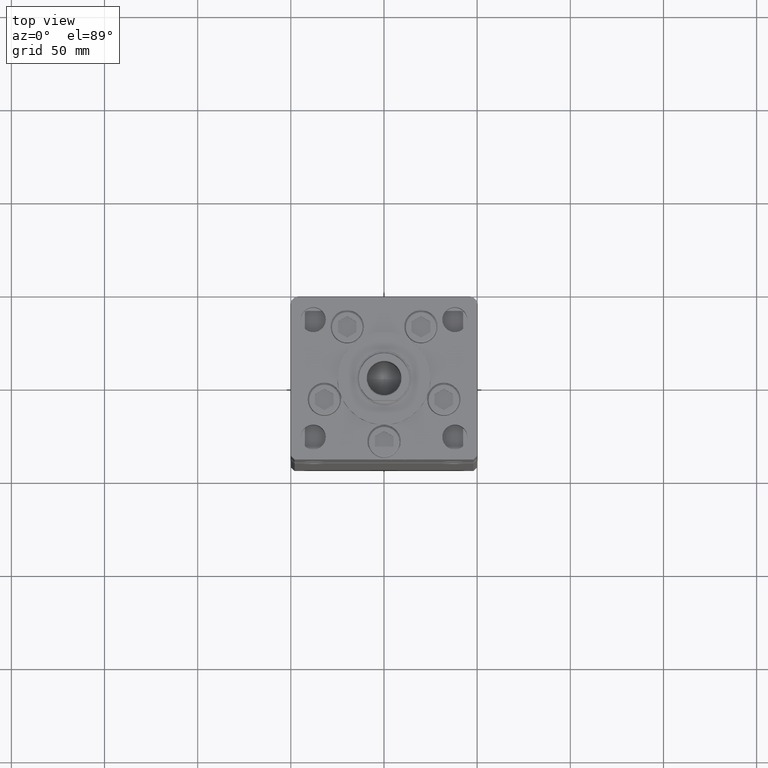
[diagram: clean part render]
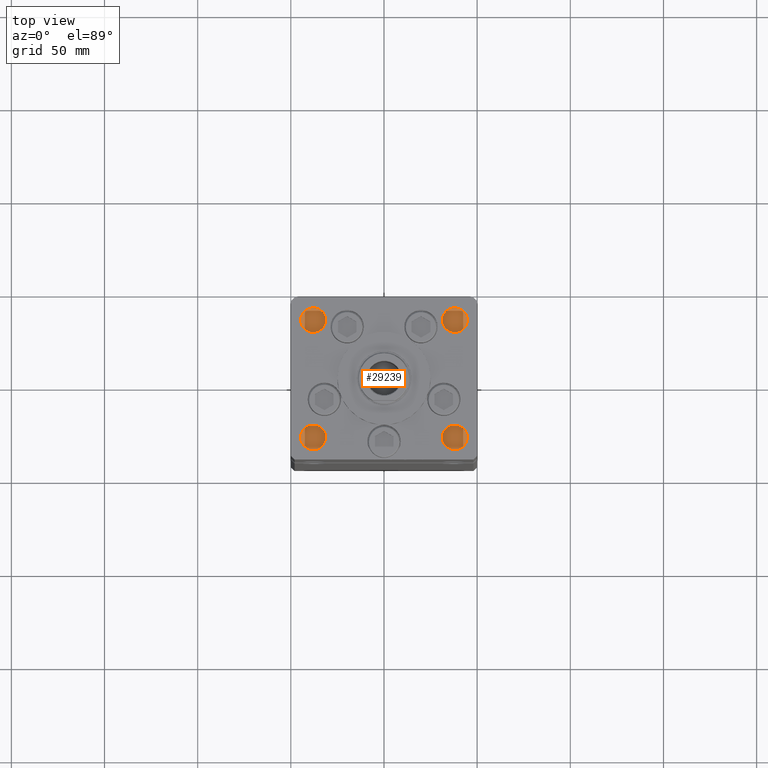
[diagram: same view with one face highlighted and labeled with its STEP entity id]
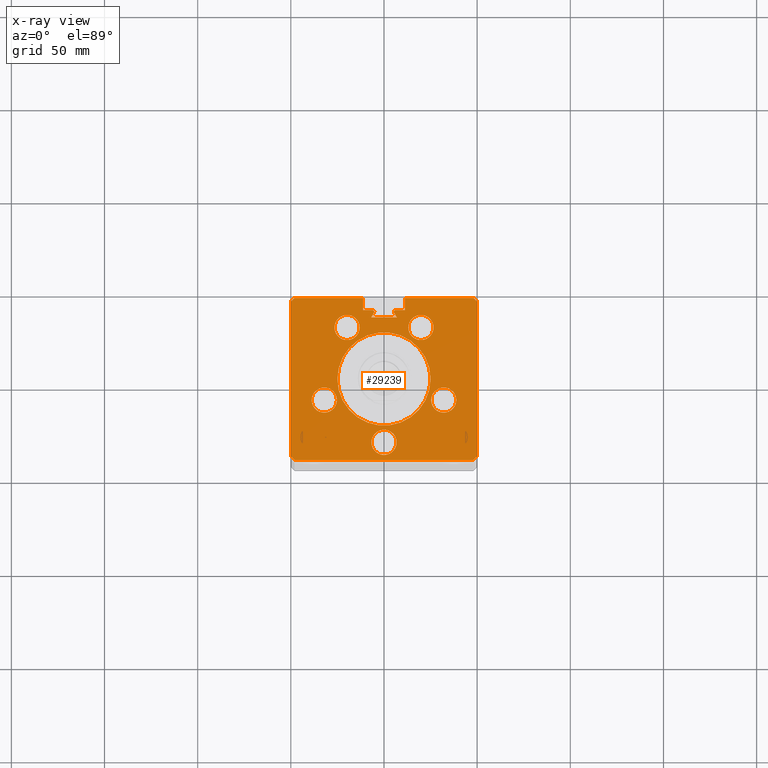
[diagram: x-ray of the same camera — body ghosted, the highlighted face saturated]
A machine part, top view. The second image highlights one B-rep face of the part: STEP entity #29239.
The next image is the same camera in x-ray: the body ghosted, the highlighted face saturated — about 0% of this face is hidden behind the body in this view.
In plain terms, the highlighted planar face has unit normal (0, 0, -1).
Its self-contained STEP definition (entity closure, byte-faithful):
#282 = DIRECTION ( 'NONE',  ( 1.000000000000000000, 0.000000000000000000, 0.000000000000000000 ) ) ;
#935 = VECTOR ( 'NONE', #36251, 1000.000000000000114 ) ;
#1066 = CARTESIAN_POINT ( 'NONE',  ( 6.183333333333996151, 36.06666666666599497, 318.5000000000000000 ) ) ;
#1135 = LINE ( 'NONE', #29928, #9316 ) ;
#1154 = CARTESIAN_POINT ( 'NONE',  ( 32.05550741379015278, -11.33333333333334103, 318.5000000000000000 ) ) ;
#1468 = EDGE_CURVE ( 'NONE', #3610, #44423, #16455, .T. ) ;
#1793 = ORIENTED_EDGE ( 'NONE', *, *, #2749, .T. ) ;
#1871 = CARTESIAN_POINT ( 'NONE',  ( -32.05550741379015278, -11.33333333333334458, 318.5000000000000000 ) ) ;
#1991 = DIRECTION ( 'NONE',  ( -0.000000000000000000, 0.000000000000000000, 1.000000000000000000 ) ) ;
#2495 = ORIENTED_EDGE ( 'NONE', *, *, #22591, .F. ) ;
#2552 = AXIS2_PLACEMENT_3D ( 'NONE', #1066, #17485, #282 ) ;
#2589 = FACE_BOUND ( 'NONE', #48832, .T. ) ;
#2749 = EDGE_CURVE ( 'NONE', #31537, #41893, #10685, .T. ) ;
#3506 = AXIS2_PLACEMENT_3D ( 'NONE', #6352, #51220, #35665 ) ;
#3610 = VERTEX_POINT ( 'NONE', #37124 ) ;
#3996 = EDGE_CURVE ( 'NONE', #43718, #29099, #11866, .T. ) ;
#4209 = CIRCLE ( 'NONE', #11085, 6.749999999999999112 ) ;
#4403 = ORIENTED_EDGE ( 'NONE', *, *, #3996, .F. ) ;
#4532 = DIRECTION ( 'NONE',  ( 1.000000000000000000, 0.000000000000000000, 0.000000000000000000 ) ) ;
#4545 = VERTEX_POINT ( 'NONE', #25293 ) ;
#4855 = VERTEX_POINT ( 'NONE', #15851 ) ;
#4986 = DIRECTION ( 'NONE',  ( -1.000000000000000000, 0.000000000000000000, 0.000000000000000000 ) ) ;
#5159 = EDGE_CURVE ( 'NONE', #42906, #51132, #1135, .T. ) ;
#5273 = AXIS2_PLACEMENT_3D ( 'NONE', #23341, #39734, #27651 ) ;
#5572 = LINE ( 'NONE', #22526, #47836 ) ;
#5626 = DIRECTION ( 'NONE',  ( 1.000000000000000000, 0.000000000000000000, 0.000000000000000000 ) ) ;
#5772 = CARTESIAN_POINT ( 'NONE',  ( -26.57068048781373903, 27.62499999999999645, 318.5000000000000000 ) ) ;
#5854 = CARTESIAN_POINT ( 'NONE',  ( 47.99999999999998579, -43.50000000000000000, 318.5000000000000000 ) ) ;
#5989 = VERTEX_POINT ( 'NONE', #22092 ) ;
#5990 = DIRECTION ( 'NONE',  ( 1.000000000000000000, 0.000000000000000000, 0.000000000000000000 ) ) ;
#6018 = CARTESIAN_POINT ( 'NONE',  ( -6.749999999999997335, -34.00000000000000000, 318.5000000000000000 ) ) ;
#6091 = FACE_BOUND ( 'NONE', #19074, .T. ) ;
#6098 = CARTESIAN_POINT ( 'NONE',  ( 48.00000000000000711, 43.50000000000000000, 318.5000000000000000 ) ) ;
#6214 = CARTESIAN_POINT ( 'NONE',  ( -11.24999999999999645, 43.50000000000000000, 318.5000000000000000 ) ) ;
#6352 = CARTESIAN_POINT ( 'NONE',  ( 0.000000000000000000, 0.000000000000000000, 318.5000000000000000 ) ) ;
#6363 = CARTESIAN_POINT ( 'NONE',  ( -6.183333333333996151, 36.06666666666599497, 318.5000000000000000 ) ) ;
#6428 = EDGE_LOOP ( 'NONE', ( #36728, #27021, #12038, #23844, #9318, #1793, #35558, #2495, #33690, #38804, #10837, #33734, #44456, #22091, #33428, #51114, #13528, #43294, #32594 ) ) ;
#6566 = CARTESIAN_POINT ( 'NONE',  ( 49.99999999999998579, -41.49999999999999289, 318.5000000000000000 ) ) ;
#7155 = CARTESIAN_POINT ( 'NONE',  ( 48.00000000000000711, 43.50000000000000000, 318.5000000000000000 ) ) ;
#7868 = DIRECTION ( 'NONE',  ( 0.000000000000000000, 0.000000000000000000, 1.000000000000000000 ) ) ;
#8292 = AXIS2_PLACEMENT_3D ( 'NONE', #52000, #47439, #19508 ) ;
#8434 = CARTESIAN_POINT ( 'NONE',  ( -13.07068048781374259, 27.62499999999999645, 318.5000000000000000 ) ) ;
#8587 = CARTESIAN_POINT ( 'NONE',  ( -6.183333333333996151, 36.06666666666599497, 318.5000000000000000 ) ) ;
#8700 = VERTEX_POINT ( 'NONE', #5772 ) ;
#9038 = VECTOR ( 'NONE', #34236, 1000.000000000000000 ) ;
#9316 = VECTOR ( 'NONE', #43060, 1000.000000000000000 ) ;
#9318 = ORIENTED_EDGE ( 'NONE', *, *, #9597, .T. ) ;
#9398 = EDGE_CURVE ( 'NONE', #49063, #32604, #14340, .T. ) ;
#9451 = CIRCLE ( 'NONE', #39524, 0.9333333333339999260 ) ;
#9597 = EDGE_CURVE ( 'NONE', #28323, #31537, #49214, .T. ) ;
#9681 = VERTEX_POINT ( 'NONE', #13212 ) ;
#9689 = CARTESIAN_POINT ( 'NONE',  ( 25.30550741379015278, -11.33333333333334103, 318.5000000000000000 ) ) ;
#9744 = VERTEX_POINT ( 'NONE', #21551 ) ;
#9868 = DIRECTION ( 'NONE',  ( 1.000000000000000000, 0.000000000000000000, 0.000000000000000000 ) ) ;
#9967 = CIRCLE ( 'NONE', #26302, 6.749999999999999112 ) ;
#10651 = DIRECTION ( 'NONE',  ( 0.000000000000000000, 1.000000000000000000, 0.000000000000000000 ) ) ;
#10685 = LINE ( 'NONE', #19565, #23000 ) ;
#10837 = ORIENTED_EDGE ( 'NONE', *, *, #5159, .F. ) ;
#10935 = VECTOR ( 'NONE', #40636, 1000.000000000000000 ) ;
#11016 = CARTESIAN_POINT ( 'NONE',  ( 38.80550741379015278, -11.33333333333334103, 318.5000000000000000 ) ) ;
#11085 = AXIS2_PLACEMENT_3D ( 'NONE', #41451, #7868, #24283 ) ;
#11462 = DIRECTION ( 'NONE',  ( 0.000000000000000000, 0.000000000000000000, 1.000000000000000000 ) ) ;
#11553 = EDGE_CURVE ( 'NONE', #30422, #33311, #12284, .T. ) ;
#11812 = CIRCLE ( 'NONE', #36698, 6.749999999999999112 ) ;
#11866 = CIRCLE ( 'NONE', #48756, 25.00000000000000000 ) ;
#12038 = ORIENTED_EDGE ( 'NONE', *, *, #51826, .F. ) ;
#12284 = LINE ( 'NONE', #32965, #21980 ) ;
#12607 = AXIS2_PLACEMENT_3D ( 'NONE', #23157, #22874, #51065 ) ;
#12628 = DIRECTION ( 'NONE',  ( 0.000000000000000000, 0.000000000000000000, 1.000000000000000000 ) ) ;
#12693 = CARTESIAN_POINT ( 'NONE',  ( 25.00000000000000000, 3.061616997868383043E-15, 318.5000000000000000 ) ) ;
#13212 = CARTESIAN_POINT ( 'NONE',  ( -38.80550741379015278, -11.33333333333334458, 318.5000000000000000 ) ) ;
#13528 = ORIENTED_EDGE ( 'NONE', *, *, #46352, .T. ) ;
#13561 = LINE ( 'NONE', #33978, #34966 ) ;
#13825 = DIRECTION ( 'NONE',  ( 0.4999999999999987788, 0.8660254037844392627, 0.000000000000000000 ) ) ;
#14340 = LINE ( 'NONE', #18112, #9038 ) ;
#14441 = PLANE ( 'NONE',  #3506 ) ;
#14727 = DIRECTION ( 'NONE',  ( 1.000000000000000000, 0.000000000000000000, 0.000000000000000000 ) ) ;
#15147 = CIRCLE ( 'NONE', #52860, 6.749999999999999112 ) ;
#15239 = EDGE_LOOP ( 'NONE', ( #48422, #21073 ) ) ;
#15289 = CARTESIAN_POINT ( 'NONE',  ( -49.99999999999998579, -41.49999999999999289, 318.5000000000000000 ) ) ;
#15472 = DIRECTION ( 'NONE',  ( -0.7071067811865474617, -0.7071067811865474617, 0.000000000000000000 ) ) ;
#15473 = VERTEX_POINT ( 'NONE', #6214 ) ;
#15605 = DIRECTION ( 'NONE',  ( 1.000000000000000000, 0.000000000000000000, 0.000000000000000000 ) ) ;
#15715 = CARTESIAN_POINT ( 'NONE',  ( -25.30550741379015278, -11.33333333333334458, 318.5000000000000000 ) ) ;
#15851 = CARTESIAN_POINT ( 'NONE',  ( -5.249999999999995559, 36.06666666666599497, 318.5000000000000000 ) ) ;
#15856 = DIRECTION ( 'NONE',  ( 1.000000000000000000, 0.000000000000000000, 0.000000000000000000 ) ) ;
#15869 = DIRECTION ( 'NONE',  ( 0.000000000000000000, 0.000000000000000000, 1.000000000000000000 ) ) ;
#16358 = EDGE_LOOP ( 'NONE', ( #21863, #48384 ) ) ;
#16455 = LINE ( 'NONE', #29088, #10935 ) ;
#16926 = LINE ( 'NONE', #37353, #52951 ) ;
#17281 = VERTEX_POINT ( 'NONE', #15715 ) ;
#17485 = DIRECTION ( 'NONE',  ( 0.000000000000000000, 0.000000000000000000, -1.000000000000000000 ) ) ;
#17793 = EDGE_CURVE ( 'NONE', #32604, #15473, #31904, .T. ) ;
#18112 = CARTESIAN_POINT ( 'NONE',  ( 0.000000000000000000, 37.00000000000000000, 318.5000000000000000 ) ) ;
#19074 = EDGE_LOOP ( 'NONE', ( #33151, #4403 ) ) ;
#19272 = FACE_BOUND ( 'NONE', #26350, .T. ) ;
#19508 = DIRECTION ( 'NONE',  ( 1.000000000000000000, 0.000000000000000000, 0.000000000000000000 ) ) ;
#19513 = EDGE_CURVE ( 'NONE', #42906, #30422, #16926, .T. ) ;
#19514 = EDGE_CURVE ( 'NONE', #41558, #21828, #11812, .T. ) ;
#19565 = CARTESIAN_POINT ( 'NONE',  ( -49.99999999999998579, -41.49999999999999289, 318.5000000000000000 ) ) ;
#20041 = CARTESIAN_POINT ( 'NONE',  ( -6.183333333333996151, 37.00000000000000000, 318.5000000000000000 ) ) ;
#20145 = CARTESIAN_POINT ( 'NONE',  ( 26.57068048781373903, 27.62500000000000000, 318.5000000000000000 ) ) ;
#20679 = CARTESIAN_POINT ( 'NONE',  ( -47.99999999999998579, -43.50000000000000000, 318.5000000000000000 ) ) ;
#21073 = ORIENTED_EDGE ( 'NONE', *, *, #30616, .F. ) ;
#21332 = VECTOR ( 'NONE', #15472, 1000.000000000000114 ) ;
#21551 = CARTESIAN_POINT ( 'NONE',  ( 50.00000000000001421, 41.49999999999999289, 318.5000000000000000 ) ) ;
#21828 = VERTEX_POINT ( 'NONE', #6018 ) ;
#21863 = ORIENTED_EDGE ( 'NONE', *, *, #19514, .F. ) ;
#21980 = VECTOR ( 'NONE', #4986, 1000.000000000000000 ) ;
#22091 = ORIENTED_EDGE ( 'NONE', *, *, #26129, .F. ) ;
#22092 = CARTESIAN_POINT ( 'NONE',  ( 13.07068048781374081, 27.62500000000000000, 318.5000000000000000 ) ) ;
#22422 = EDGE_CURVE ( 'NONE', #8700, #30305, #46202, .T. ) ;
#22506 = FACE_BOUND ( 'NONE', #15239, .T. ) ;
#22526 = CARTESIAN_POINT ( 'NONE',  ( -11.24999999999999645, 43.50000000000000000, 318.5000000000000000 ) ) ;
#22591 = EDGE_CURVE ( 'NONE', #4545, #46825, #22720, .T. ) ;
#22683 = CARTESIAN_POINT ( 'NONE',  ( 6.183333333333996151, 37.00000000000000000, 318.5000000000000000 ) ) ;
#22720 = LINE ( 'NONE', #6566, #21332 ) ;
#22874 = DIRECTION ( 'NONE',  ( 0.000000000000000000, 0.000000000000000000, 1.000000000000000000 ) ) ;
#23000 = VECTOR ( 'NONE', #27106, 1000.000000000000114 ) ;
#23088 = LINE ( 'NONE', #40011, #935 ) ;
#23137 = VERTEX_POINT ( 'NONE', #20145 ) ;
#23157 = CARTESIAN_POINT ( 'NONE',  ( 19.82068048781374259, 27.62500000000000000, 318.5000000000000000 ) ) ;
#23313 = LINE ( 'NONE', #7155, #49723 ) ;
#23341 = CARTESIAN_POINT ( 'NONE',  ( 19.82068048781374259, 27.62500000000000000, 318.5000000000000000 ) ) ;
#23844 = ORIENTED_EDGE ( 'NONE', *, *, #33344, .T. ) ;
#23979 = VERTEX_POINT ( 'NONE', #9689 ) ;
#24032 = DIRECTION ( 'NONE',  ( -0.7071067811865487940, -0.7071067811865463515, 0.000000000000000000 ) ) ;
#24148 = VECTOR ( 'NONE', #24032, 1000.000000000000000 ) ;
#24283 = DIRECTION ( 'NONE',  ( 1.000000000000000000, 0.000000000000000000, 0.000000000000000000 ) ) ;
#24541 = ORIENTED_EDGE ( 'NONE', *, *, #34845, .F. ) ;
#24882 = EDGE_CURVE ( 'NONE', #17281, #9681, #4209, .T. ) ;
#25000 = DIRECTION ( 'NONE',  ( 0.000000000000000000, 0.000000000000000000, -1.000000000000000000 ) ) ;
#25293 = CARTESIAN_POINT ( 'NONE',  ( 49.99999999999998579, -41.49999999999999289, 318.5000000000000000 ) ) ;
#25294 = EDGE_CURVE ( 'NONE', #51132, #9744, #23313, .T. ) ;
#25391 = ORIENTED_EDGE ( 'NONE', *, *, #47690, .F. ) ;
#25897 = CIRCLE ( 'NONE', #44759, 6.749999999999999112 ) ;
#26129 = EDGE_CURVE ( 'NONE', #36893, #33311, #43769, .T. ) ;
#26302 = AXIS2_PLACEMENT_3D ( 'NONE', #1154, #29946, #5990 ) ;
#26350 = EDGE_LOOP ( 'NONE', ( #24541, #33910 ) ) ;
#26480 = AXIS2_PLACEMENT_3D ( 'NONE', #50913, #50381, #42592 ) ;
#26602 = CARTESIAN_POINT ( 'NONE',  ( 32.05550741379015278, -11.33333333333334103, 318.5000000000000000 ) ) ;
#26887 = DIRECTION ( 'NONE',  ( 0.000000000000000000, 0.000000000000000000, 1.000000000000000000 ) ) ;
#27021 = ORIENTED_EDGE ( 'NONE', *, *, #17793, .T. ) ;
#27106 = DIRECTION ( 'NONE',  ( 0.7071067811865474617, -0.7071067811865474617, 0.000000000000000000 ) ) ;
#27166 = EDGE_CURVE ( 'NONE', #21828, #41558, #41200, .T. ) ;
#27422 = EDGE_CURVE ( 'NONE', #4855, #31862, #9451, .T. ) ;
#27651 = DIRECTION ( 'NONE',  ( 1.000000000000000000, 0.000000000000000000, 0.000000000000000000 ) ) ;
#27810 = CARTESIAN_POINT ( 'NONE',  ( -48.00000000000000711, 43.50000000000000000, 318.5000000000000000 ) ) ;
#27886 = FACE_OUTER_BOUND ( 'NONE', #6428, .T. ) ;
#28323 = VERTEX_POINT ( 'NONE', #37055 ) ;
#28745 = LINE ( 'NONE', #20679, #29727 ) ;
#29040 = DIRECTION ( 'NONE',  ( 1.000000000000000000, 0.000000000000000000, 0.000000000000000000 ) ) ;
#29088 = CARTESIAN_POINT ( 'NONE',  ( 0.000000000000000000, 32.99999999999986500, 318.5000000000000000 ) ) ;
#29099 = VERTEX_POINT ( 'NONE', #29524 ) ;
#29239 = ADVANCED_FACE ( 'NONE', ( #52304, #39166, #19272, #22506, #2589, #27886, #6091 ), #14441, .F. ) ;
#29524 = CARTESIAN_POINT ( 'NONE',  ( -25.00000000000000000, 0.000000000000000000, 318.5000000000000000 ) ) ;
#29727 = VECTOR ( 'NONE', #33549, 1000.000000000000000 ) ;
#29928 = CARTESIAN_POINT ( 'NONE',  ( -11.24999999999999645, 43.50000000000000000, 318.5000000000000000 ) ) ;
#29946 = DIRECTION ( 'NONE',  ( 0.000000000000000000, 0.000000000000000000, 1.000000000000000000 ) ) ;
#30254 = CARTESIAN_POINT ( 'NONE',  ( 0.000000000000000000, 0.000000000000000000, 318.5000000000000000 ) ) ;
#30305 = VERTEX_POINT ( 'NONE', #8434 ) ;
#30342 = CARTESIAN_POINT ( 'NONE',  ( 11.24999999999999645, 37.00000000000000000, 318.5000000000000000 ) ) ;
#30422 = VERTEX_POINT ( 'NONE', #30342 ) ;
#30428 = CARTESIAN_POINT ( 'NONE',  ( -11.24999999999999645, 37.00000000000000000, 318.5000000000000000 ) ) ;
#30616 = EDGE_CURVE ( 'NONE', #5989, #23137, #52465, .T. ) ;
#30808 = CARTESIAN_POINT ( 'NONE',  ( 50.00000000000001421, 41.49999999999999289, 318.5000000000000000 ) ) ;
#30865 = DIRECTION ( 'NONE',  ( 0.000000000000000000, 0.000000000000000000, -1.000000000000000000 ) ) ;
#31537 = VERTEX_POINT ( 'NONE', #15289 ) ;
#31862 = VERTEX_POINT ( 'NONE', #51996 ) ;
#31904 = LINE ( 'NONE', #39701, #36655 ) ;
#32589 = CARTESIAN_POINT ( 'NONE',  ( -50.00000000000001421, 41.49999999999999289, 318.5000000000000000 ) ) ;
#32594 = ORIENTED_EDGE ( 'NONE', *, *, #36623, .F. ) ;
#32604 = VERTEX_POINT ( 'NONE', #30428 ) ;
#32848 = DIRECTION ( 'NONE',  ( 3.344045254895050973E-16, -1.000000000000000000, 0.000000000000000000 ) ) ;
#32965 = CARTESIAN_POINT ( 'NONE',  ( 0.000000000000000000, 37.00000000000000000, 318.5000000000000000 ) ) ;
#33127 = AXIS2_PLACEMENT_3D ( 'NONE', #1871, #26887, #5626 ) ;
#33151 = ORIENTED_EDGE ( 'NONE', *, *, #48925, .F. ) ;
#33311 = VERTEX_POINT ( 'NONE', #22683 ) ;
#33344 = EDGE_CURVE ( 'NONE', #37859, #28323, #35317, .T. ) ;
#33428 = ORIENTED_EDGE ( 'NONE', *, *, #33812, .T. ) ;
#33549 = DIRECTION ( 'NONE',  ( 1.000000000000000000, 0.000000000000000000, 0.000000000000000000 ) ) ;
#33690 = ORIENTED_EDGE ( 'NONE', *, *, #46900, .F. ) ;
#33734 = ORIENTED_EDGE ( 'NONE', *, *, #19513, .T. ) ;
#33812 = EDGE_CURVE ( 'NONE', #36893, #3610, #23088, .T. ) ;
#33910 = ORIENTED_EDGE ( 'NONE', *, *, #43458, .F. ) ;
#33978 = CARTESIAN_POINT ( 'NONE',  ( -19.44653440471351757, 11.22746187336663404, 318.5000000000000000 ) ) ;
#34236 = DIRECTION ( 'NONE',  ( -1.000000000000000000, 0.000000000000000000, 0.000000000000000000 ) ) ;
#34809 = DIRECTION ( 'NONE',  ( -3.344045254895050973E-16, -1.000000000000000000, 0.000000000000000000 ) ) ;
#34845 = EDGE_CURVE ( 'NONE', #51602, #23979, #25897, .T. ) ;
#34966 = VECTOR ( 'NONE', #13825, 1000.000000000000114 ) ;
#35317 = LINE ( 'NONE', #27810, #24148 ) ;
#35558 = ORIENTED_EDGE ( 'NONE', *, *, #42186, .T. ) ;
#35665 = DIRECTION ( 'NONE',  ( -1.000000000000000000, 0.000000000000000000, -0.000000000000000000 ) ) ;
#36239 = CARTESIAN_POINT ( 'NONE',  ( 5.375042956467946276, 35.59999999999899245, 318.5000000000000000 ) ) ;
#36251 = DIRECTION ( 'NONE',  ( 0.4999999999999987788, -0.8660254037844392627, 0.000000000000000000 ) ) ;
#36623 = EDGE_CURVE ( 'NONE', #49063, #4855, #41348, .T. ) ;
#36655 = VECTOR ( 'NONE', #10651, 1000.000000000000000 ) ;
#36698 = AXIS2_PLACEMENT_3D ( 'NONE', #49410, #12628, #29040 ) ;
#36728 = ORIENTED_EDGE ( 'NONE', *, *, #9398, .T. ) ;
#36893 = VERTEX_POINT ( 'NONE', #36239 ) ;
#37055 = CARTESIAN_POINT ( 'NONE',  ( -50.00000000000001421, 41.49999999999999289, 318.5000000000000000 ) ) ;
#37124 = CARTESIAN_POINT ( 'NONE',  ( 6.876153656360465050, 32.99999999999986500, 318.5000000000000000 ) ) ;
#37353 = CARTESIAN_POINT ( 'NONE',  ( 11.24999999999999645, 0.000000000000000000, 318.5000000000000000 ) ) ;
#37769 = CARTESIAN_POINT ( 'NONE',  ( -48.00000000000000711, 43.50000000000000000, 318.5000000000000000 ) ) ;
#37859 = VERTEX_POINT ( 'NONE', #37769 ) ;
#38804 = ORIENTED_EDGE ( 'NONE', *, *, #25294, .F. ) ;
#39166 = FACE_BOUND ( 'NONE', #16358, .T. ) ;
#39524 = AXIS2_PLACEMENT_3D ( 'NONE', #6363, #30865, #14727 ) ;
#39701 = CARTESIAN_POINT ( 'NONE',  ( -11.24999999999999645, 0.000000000000000000, 318.5000000000000000 ) ) ;
#39734 = DIRECTION ( 'NONE',  ( 0.000000000000000000, 0.000000000000000000, 1.000000000000000000 ) ) ;
#39962 = DIRECTION ( 'NONE',  ( 0.7071067811865487940, -0.7071067811865463515, 0.000000000000000000 ) ) ;
#40011 = CARTESIAN_POINT ( 'NONE',  ( 19.44653440471351757, 11.22746187336663404, 318.5000000000000000 ) ) ;
#40574 = CARTESIAN_POINT ( 'NONE',  ( 6.750000000000000888, -34.00000000000000000, 318.5000000000000000 ) ) ;
#40636 = DIRECTION ( 'NONE',  ( -1.000000000000000000, 0.000000000000000000, 0.000000000000000000 ) ) ;
#41200 = CIRCLE ( 'NONE', #51498, 6.749999999999999112 ) ;
#41283 = ORIENTED_EDGE ( 'NONE', *, *, #22422, .F. ) ;
#41348 = CIRCLE ( 'NONE', #48204, 0.9333333333339999260 ) ;
#41365 = CARTESIAN_POINT ( 'NONE',  ( 11.24999999999998934, 43.50000000000000000, 318.5000000000000000 ) ) ;
#41451 = CARTESIAN_POINT ( 'NONE',  ( -32.05550741379015278, -11.33333333333334458, 318.5000000000000000 ) ) ;
#41558 = VERTEX_POINT ( 'NONE', #40574 ) ;
#41784 = CIRCLE ( 'NONE', #8292, 25.00000000000000000 ) ;
#41893 = VERTEX_POINT ( 'NONE', #52955 ) ;
#42015 = EDGE_CURVE ( 'NONE', #9681, #17281, #48570, .T. ) ;
#42186 = EDGE_CURVE ( 'NONE', #41893, #46825, #28745, .T. ) ;
#42592 = DIRECTION ( 'NONE',  ( 1.000000000000000000, 0.000000000000000000, 0.000000000000000000 ) ) ;
#42906 = VERTEX_POINT ( 'NONE', #41365 ) ;
#42914 = EDGE_LOOP ( 'NONE', ( #46028, #51403 ) ) ;
#43060 = DIRECTION ( 'NONE',  ( 1.000000000000000000, 0.000000000000000000, 0.000000000000000000 ) ) ;
#43294 = ORIENTED_EDGE ( 'NONE', *, *, #27422, .F. ) ;
#43458 = EDGE_CURVE ( 'NONE', #23979, #51602, #9967, .T. ) ;
#43718 = VERTEX_POINT ( 'NONE', #12693 ) ;
#43769 = CIRCLE ( 'NONE', #2552, 0.9333333333339999260 ) ;
#44052 = DIRECTION ( 'NONE',  ( 0.000000000000000000, 0.000000000000000000, 1.000000000000000000 ) ) ;
#44423 = VERTEX_POINT ( 'NONE', #52595 ) ;
#44456 = ORIENTED_EDGE ( 'NONE', *, *, #11553, .T. ) ;
#44759 = AXIS2_PLACEMENT_3D ( 'NONE', #26602, #11462, #52560 ) ;
#45127 = DIRECTION ( 'NONE',  ( -0.000000000000000000, -1.000000000000000000, 0.000000000000000000 ) ) ;
#45857 = EDGE_CURVE ( 'NONE', #23137, #5989, #52055, .T. ) ;
#46028 = ORIENTED_EDGE ( 'NONE', *, *, #24882, .F. ) ;
#46202 = CIRCLE ( 'NONE', #26480, 6.749999999999999112 ) ;
#46352 = EDGE_CURVE ( 'NONE', #44423, #31862, #13561, .T. ) ;
#46825 = VERTEX_POINT ( 'NONE', #5854 ) ;
#46867 = DIRECTION ( 'NONE',  ( 1.000000000000000000, 0.000000000000000000, 0.000000000000000000 ) ) ;
#46900 = EDGE_CURVE ( 'NONE', #9744, #4545, #47679, .T. ) ;
#47439 = DIRECTION ( 'NONE',  ( -0.000000000000000000, 0.000000000000000000, 1.000000000000000000 ) ) ;
#47679 = LINE ( 'NONE', #30808, #52977 ) ;
#47690 = EDGE_CURVE ( 'NONE', #30305, #8700, #15147, .T. ) ;
#47836 = VECTOR ( 'NONE', #9868, 1000.000000000000000 ) ;
#48204 = AXIS2_PLACEMENT_3D ( 'NONE', #8587, #25000, #4532 ) ;
#48384 = ORIENTED_EDGE ( 'NONE', *, *, #27166, .F. ) ;
#48422 = ORIENTED_EDGE ( 'NONE', *, *, #45857, .F. ) ;
#48570 = CIRCLE ( 'NONE', #33127, 6.749999999999999112 ) ;
#48756 = AXIS2_PLACEMENT_3D ( 'NONE', #30254, #1991, #46867 ) ;
#48832 = EDGE_LOOP ( 'NONE', ( #25391, #41283 ) ) ;
#48925 = EDGE_CURVE ( 'NONE', #29099, #43718, #41784, .T. ) ;
#49063 = VERTEX_POINT ( 'NONE', #20041 ) ;
#49214 = LINE ( 'NONE', #32589, #50261 ) ;
#49410 = CARTESIAN_POINT ( 'NONE',  ( 2.081899558550500280E-15, -34.00000000000000000, 318.5000000000000000 ) ) ;
#49723 = VECTOR ( 'NONE', #39962, 1000.000000000000000 ) ;
#50261 = VECTOR ( 'NONE', #32848, 1000.000000000000000 ) ;
#50381 = DIRECTION ( 'NONE',  ( 0.000000000000000000, 0.000000000000000000, 1.000000000000000000 ) ) ;
#50913 = CARTESIAN_POINT ( 'NONE',  ( -19.82068048781374259, 27.62499999999999645, 318.5000000000000000 ) ) ;
#51065 = DIRECTION ( 'NONE',  ( 1.000000000000000000, 0.000000000000000000, 0.000000000000000000 ) ) ;
#51114 = ORIENTED_EDGE ( 'NONE', *, *, #1468, .T. ) ;
#51132 = VERTEX_POINT ( 'NONE', #6098 ) ;
#51220 = DIRECTION ( 'NONE',  ( 0.000000000000000000, 0.000000000000000000, -1.000000000000000000 ) ) ;
#51403 = ORIENTED_EDGE ( 'NONE', *, *, #42015, .F. ) ;
#51498 = AXIS2_PLACEMENT_3D ( 'NONE', #52375, #44052, #15856 ) ;
#51602 = VERTEX_POINT ( 'NONE', #11016 ) ;
#51826 = EDGE_CURVE ( 'NONE', #37859, #15473, #5572, .T. ) ;
#51996 = CARTESIAN_POINT ( 'NONE',  ( -5.375042956467946276, 35.59999999999899245, 318.5000000000000000 ) ) ;
#52000 = CARTESIAN_POINT ( 'NONE',  ( 0.000000000000000000, 0.000000000000000000, 318.5000000000000000 ) ) ;
#52055 = CIRCLE ( 'NONE', #12607, 6.749999999999999112 ) ;
#52304 = FACE_BOUND ( 'NONE', #42914, .T. ) ;
#52375 = CARTESIAN_POINT ( 'NONE',  ( 2.081899558550500280E-15, -34.00000000000000000, 318.5000000000000000 ) ) ;
#52392 = CARTESIAN_POINT ( 'NONE',  ( -19.82068048781374259, 27.62499999999999645, 318.5000000000000000 ) ) ;
#52465 = CIRCLE ( 'NONE', #5273, 6.749999999999999112 ) ;
#52560 = DIRECTION ( 'NONE',  ( 1.000000000000000000, 0.000000000000000000, 0.000000000000000000 ) ) ;
#52595 = CARTESIAN_POINT ( 'NONE',  ( -6.876153656360465050, 32.99999999999986500, 318.5000000000000000 ) ) ;
#52860 = AXIS2_PLACEMENT_3D ( 'NONE', #52392, #15869, #15605 ) ;
#52951 = VECTOR ( 'NONE', #45127, 1000.000000000000000 ) ;
#52955 = CARTESIAN_POINT ( 'NONE',  ( -47.99999999999998579, -43.50000000000000000, 318.5000000000000000 ) ) ;
#52977 = VECTOR ( 'NONE', #34809, 1000.000000000000000 ) ;